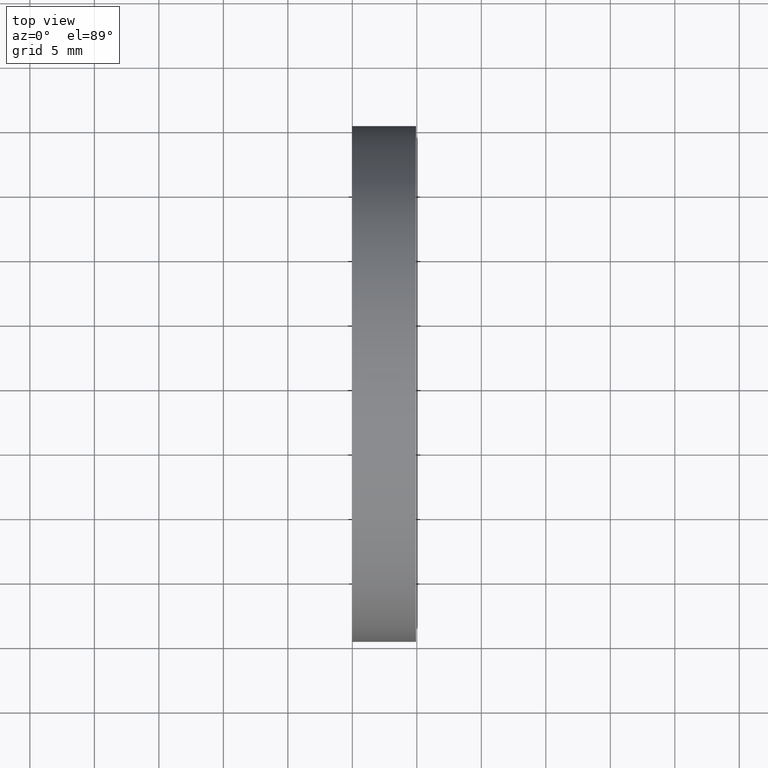
[diagram: clean part render]
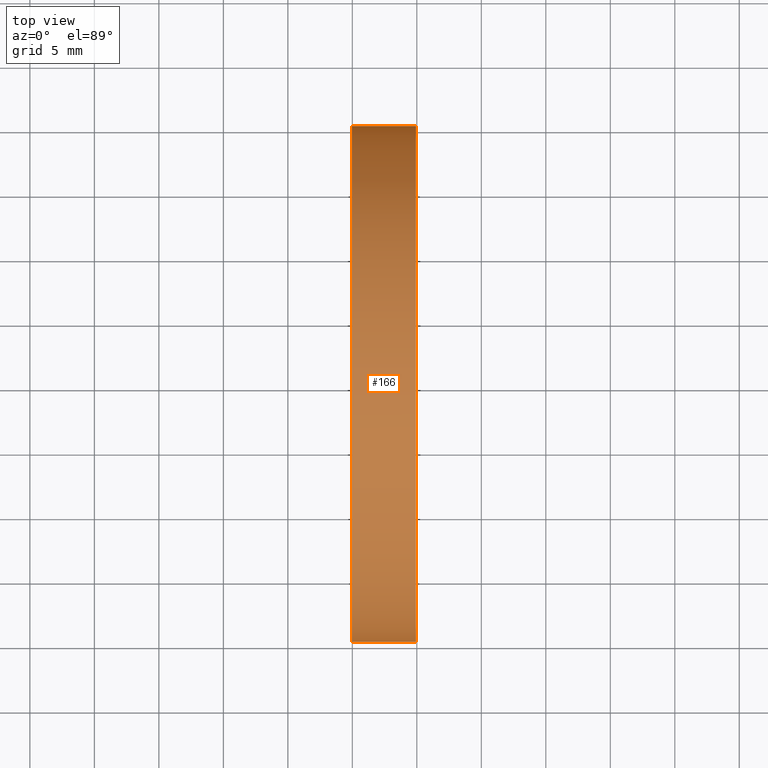
[diagram: same view with one face highlighted and labeled with its STEP entity id]
A machine part, top view. The second image highlights one B-rep face of the part: STEP entity #166.
In plain terms, the highlighted cylindrical surface (partial cylindrical patch) has radius 20 mm, axis along (-1, 0, -0).
Its self-contained STEP definition (entity closure, byte-faithful):
#2 = EDGE_CURVE ( 'NONE', #124, #101, #45, .T. ) ;
#5 = CARTESIAN_POINT ( 'NONE',  ( 119.9344168071347200, 85.15745182658623900, 2.449293598294714000E-015 ) ) ;
#8 = ORIENTED_EDGE ( 'NONE', *, *, #2, .F. ) ;
#10 = ORIENTED_EDGE ( 'NONE', *, *, #135, .T. ) ;
#12 = LINE ( 'NONE', #28, #75 ) ;
#13 = VERTEX_POINT ( 'NONE', #5 ) ;
#18 = DIRECTION ( 'NONE',  ( -1.000000000000000000, 6.488933942079480100E-016, -0.0000000000000000000 ) ) ;
#19 = EDGE_CURVE ( 'NONE', #114, #124, #31, .T. ) ;
#28 = CARTESIAN_POINT ( 'NONE',  ( 110.0147892488423800, 85.15745182658621100, 2.449293598294708100E-015 ) ) ;
#31 = LINE ( 'NONE', #108, #111 ) ;
#32 = AXIS2_PLACEMENT_3D ( 'NONE', #59, #117, #82 ) ;
#33 = DIRECTION ( 'NONE',  ( -6.938893903907219500E-016, -1.000000000000000000, 0.0000000000000000000 ) ) ;
#36 = DIRECTION ( 'NONE',  ( -1.000000000000000000, 6.488933942079480100E-016, -0.0000000000000000000 ) ) ;
#45 = CIRCLE ( 'NONE', #32, 20.00000000000000400 ) ;
#51 = CARTESIAN_POINT ( 'NONE',  ( 110.0147892488423600, 65.15745182658619700, 0.0000000000000000000 ) ) ;
#59 = CARTESIAN_POINT ( 'NONE',  ( 114.9754472601862100, 65.15745182658619700, 0.0000000000000000000 ) ) ;
#62 = DIRECTION ( 'NONE',  ( -6.938893903907224400E-016, -1.000000000000000000, 0.0000000000000000000 ) ) ;
#75 = VECTOR ( 'NONE', #122, 1000.000000000000000 ) ;
#77 = ORIENTED_EDGE ( 'NONE', *, *, #19, .F. ) ;
#82 = DIRECTION ( 'NONE',  ( -6.938893903907227400E-016, -1.000000000000000000, 0.0000000000000000000 ) ) ;
#85 = AXIS2_PLACEMENT_3D ( 'NONE', #51, #36, #62 ) ;
#86 = CYLINDRICAL_SURFACE ( 'NONE', #85, 20.00000000000001100 ) ;
#87 = EDGE_LOOP ( 'NONE', ( #10, #140, #8, #77 ) ) ;
#92 = CARTESIAN_POINT ( 'NONE',  ( 119.9344168071347100, 65.15745182658619700, 0.0000000000000000000 ) ) ;
#95 = CARTESIAN_POINT ( 'NONE',  ( 114.9754472601862300, 85.15745182658619700, 2.449293598294706500E-015 ) ) ;
#101 = VERTEX_POINT ( 'NONE', #95 ) ;
#106 = DIRECTION ( 'NONE',  ( -1.000000000000000000, 6.488933942079480100E-016, -0.0000000000000000000 ) ) ;
#108 = CARTESIAN_POINT ( 'NONE',  ( 110.0147892488423500, 45.15745182658618300, 0.0000000000000000000 ) ) ;
#111 = VECTOR ( 'NONE', #106, 1000.000000000000000 ) ;
#114 = VERTEX_POINT ( 'NONE', #157 ) ;
#117 = DIRECTION ( 'NONE',  ( -1.000000000000000000, 6.488933942079480100E-016, -0.0000000000000000000 ) ) ;
#119 = CARTESIAN_POINT ( 'NONE',  ( 114.9754472601862000, 45.15745182658619000, 0.0000000000000000000 ) ) ;
#121 = CIRCLE ( 'NONE', #153, 20.00000000000002500 ) ;
#122 = DIRECTION ( 'NONE',  ( -1.000000000000000000, 6.488933942079480100E-016, -0.0000000000000000000 ) ) ;
#124 = VERTEX_POINT ( 'NONE', #119 ) ;
#135 = EDGE_CURVE ( 'NONE', #114, #13, #121, .T. ) ;
#140 = ORIENTED_EDGE ( 'NONE', *, *, #143, .T. ) ;
#142 = FACE_OUTER_BOUND ( 'NONE', #87, .T. ) ;
#143 = EDGE_CURVE ( 'NONE', #13, #101, #12, .T. ) ;
#153 = AXIS2_PLACEMENT_3D ( 'NONE', #92, #18, #33 ) ;
#157 = CARTESIAN_POINT ( 'NONE',  ( 119.9344168071347100, 45.15745182658613300, 0.0000000000000000000 ) ) ;
#166 = ADVANCED_FACE ( 'NONE', ( #142 ), #86, .T. ) ;